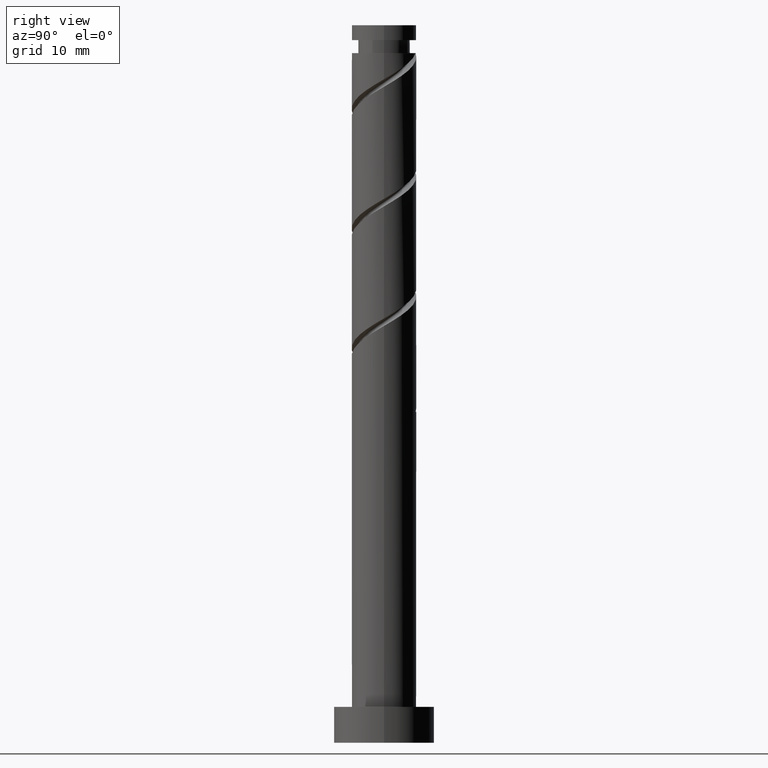
[diagram: clean part render]
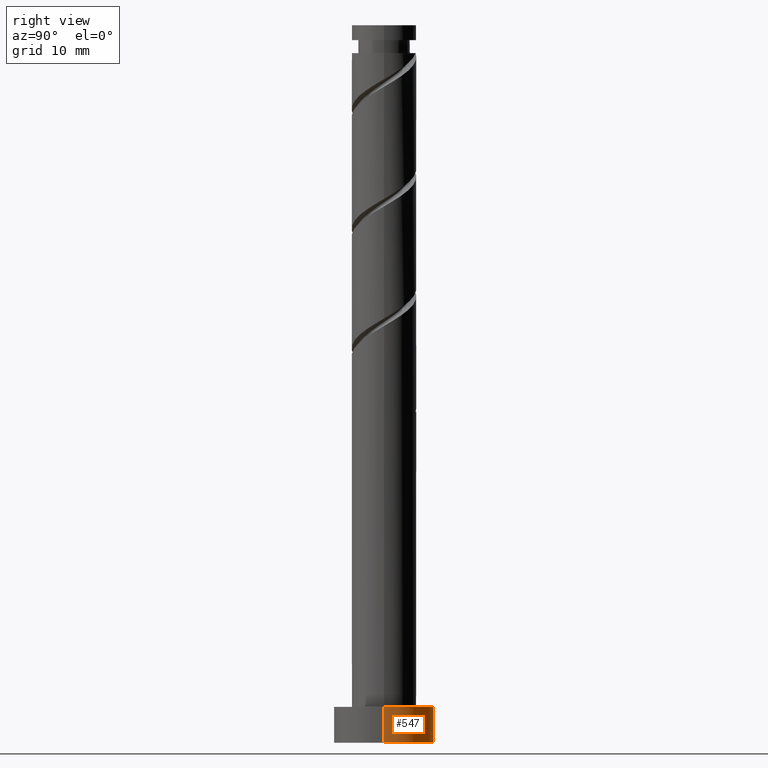
[diagram: same view with one face highlighted and labeled with its STEP entity id]
A machine part, right view. The second image highlights one B-rep face of the part: STEP entity #547.
In plain terms, the highlighted cylindrical surface (partial cylindrical patch) has radius 7 mm, axis along (-0, -0, -1).
Its self-contained STEP definition (entity closure, byte-faithful):
#5 = ORIENTED_EDGE ( 'NONE', *, *, #729, .T. ) ;
#16 = VECTOR ( 'NONE', #1093, 1000.000000000000000 ) ;
#20 = CIRCLE ( 'NONE', #714, 7.000000000000000000 ) ;
#155 = EDGE_CURVE ( 'NONE', #436, #636, #1220, .T. ) ;
#194 = CYLINDRICAL_SURFACE ( 'NONE', #339, 7.000000000000000000 ) ;
#202 = DIRECTION ( 'NONE',  ( -0.000000000000000000, -0.000000000000000000, -1.000000000000000000 ) ) ;
#266 = CARTESIAN_POINT ( 'NONE',  ( 7.000000000000000000, 8.572527594031473190E-16, 0.000000000000000000 ) ) ;
#267 = CARTESIAN_POINT ( 'NONE',  ( 0.000000000000000000, 0.000000000000000000, 0.000000000000000000 ) ) ;
#275 = ORIENTED_EDGE ( 'NONE', *, *, #979, .F. ) ;
#300 = CARTESIAN_POINT ( 'NONE',  ( 7.000000000000000000, 8.572527594031473190E-16, 5.000000000000000000 ) ) ;
#323 = ORIENTED_EDGE ( 'NONE', *, *, #1281, .T. ) ;
#338 = VERTEX_POINT ( 'NONE', #300 ) ;
#339 = AXIS2_PLACEMENT_3D ( 'NONE', #911, #202, #1479 ) ;
#355 = ORIENTED_EDGE ( 'NONE', *, *, #155, .F. ) ;
#401 = DIRECTION ( 'NONE',  ( 0.000000000000000000, 0.000000000000000000, 1.000000000000000000 ) ) ;
#435 = CARTESIAN_POINT ( 'NONE',  ( 0.000000000000000000, 0.000000000000000000, 5.000000000000000000 ) ) ;
#436 = VERTEX_POINT ( 'NONE', #887 ) ;
#447 = FACE_OUTER_BOUND ( 'NONE', #467, .T. ) ;
#467 = EDGE_LOOP ( 'NONE', ( #275, #5, #323, #355 ) ) ;
#536 = DIRECTION ( 'NONE',  ( 1.000000000000000000, 0.000000000000000000, 0.000000000000000000 ) ) ;
#547 = ADVANCED_FACE ( 'NONE', ( #447 ), #194, .T. ) ;
#609 = DIRECTION ( 'NONE',  ( -0.000000000000000000, -0.000000000000000000, -1.000000000000000000 ) ) ;
#612 = DIRECTION ( 'NONE',  ( 1.000000000000000000, 0.000000000000000000, 0.000000000000000000 ) ) ;
#629 = VECTOR ( 'NONE', #609, 1000.000000000000000 ) ;
#636 = VERTEX_POINT ( 'NONE', #895 ) ;
#648 = CARTESIAN_POINT ( 'NONE',  ( -7.000000000000000000, 0.000000000000000000, 5.000000000000000000 ) ) ;
#714 = AXIS2_PLACEMENT_3D ( 'NONE', #435, #401, #536 ) ;
#729 = EDGE_CURVE ( 'NONE', #338, #924, #1433, .T. ) ;
#733 = CARTESIAN_POINT ( 'NONE',  ( 7.000000000000000000, 8.572527594031473190E-16, 5.000000000000000000 ) ) ;
#735 = AXIS2_PLACEMENT_3D ( 'NONE', #267, #861, #612 ) ;
#861 = DIRECTION ( 'NONE',  ( 0.000000000000000000, 0.000000000000000000, 1.000000000000000000 ) ) ;
#887 = CARTESIAN_POINT ( 'NONE',  ( -7.000000000000000000, 0.000000000000000000, 5.000000000000000000 ) ) ;
#895 = CARTESIAN_POINT ( 'NONE',  ( -7.000000000000000000, 0.000000000000000000, 0.000000000000000000 ) ) ;
#911 = CARTESIAN_POINT ( 'NONE',  ( 0.000000000000000000, 0.000000000000000000, 5.000000000000000000 ) ) ;
#924 = VERTEX_POINT ( 'NONE', #266 ) ;
#979 = EDGE_CURVE ( 'NONE', #338, #436, #20, .T. ) ;
#1048 = CIRCLE ( 'NONE', #735, 7.000000000000000000 ) ;
#1093 = DIRECTION ( 'NONE',  ( -0.000000000000000000, -0.000000000000000000, -1.000000000000000000 ) ) ;
#1220 = LINE ( 'NONE', #648, #16 ) ;
#1281 = EDGE_CURVE ( 'NONE', #924, #636, #1048, .T. ) ;
#1433 = LINE ( 'NONE', #733, #629 ) ;
#1479 = DIRECTION ( 'NONE',  ( -1.000000000000000000, 0.000000000000000000, 0.000000000000000000 ) ) ;